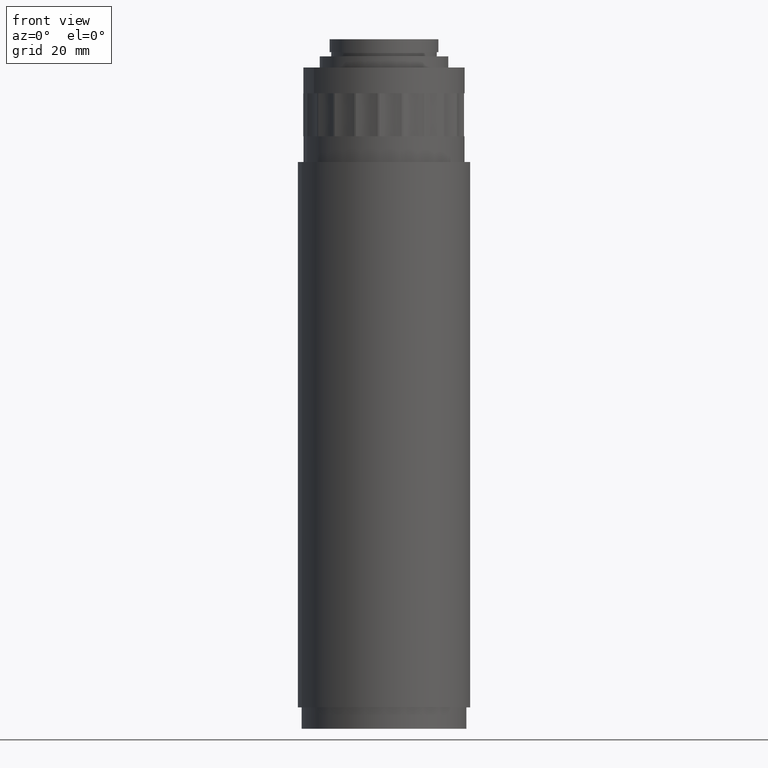
[diagram: clean part render]
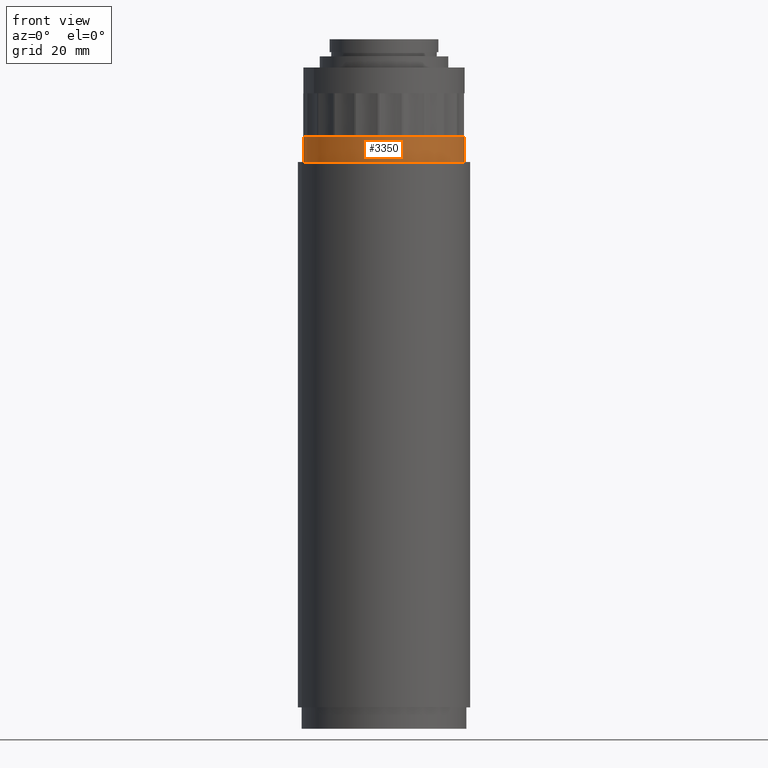
[diagram: same view with one face highlighted and labeled with its STEP entity id]
A machine part, front view. The second image highlights one B-rep face of the part: STEP entity #3350.
In plain terms, the highlighted cylindrical surface (bore or boss wall) has radius 18.8 mm, axis along (0, -0, -1).
Its self-contained STEP definition (entity closure, byte-faithful):
#158 = EDGE_CURVE ( 'NONE', #3812, #3812, #2597, .T. ) ;
#373 = FACE_OUTER_BOUND ( 'NONE', #5061, .T. ) ;
#570 = AXIS2_PLACEMENT_3D ( 'NONE', #4874, #5004, #1530 ) ;
#659 = DIRECTION ( 'NONE',  ( -4.046155243032693411E-18, 1.257599212541799935E-17, 1.000000000000000000 ) ) ;
#1460 = ORIENTED_EDGE ( 'NONE', *, *, #158, .T. ) ;
#1530 = DIRECTION ( 'NONE',  ( -0.9519431365357644559, -0.3062748190799417514, 0.000000000000000000 ) ) ;
#1576 = CIRCLE ( 'NONE', #1812, 18.80000000000000071 ) ;
#1812 = AXIS2_PLACEMENT_3D ( 'NONE', #3193, #4027, #4748 ) ;
#2258 = VERTEX_POINT ( 'NONE', #3377 ) ;
#2391 = EDGE_CURVE ( 'NONE', #2258, #2258, #1576, .T. ) ;
#2518 = FACE_OUTER_BOUND ( 'NONE', #3065, .T. ) ;
#2597 = CIRCLE ( 'NONE', #3330, 18.80000000000000071 ) ;
#2628 = DIRECTION ( 'NONE',  ( -0.9519431365357644559, -0.3062748190799417514, 0.000000000000000000 ) ) ;
#2681 = CARTESIAN_POINT ( 'NONE',  ( -17.88470066473946929, -5.771215731367113300, 322.5586631449635320 ) ) ;
#2912 = ORIENTED_EDGE ( 'NONE', *, *, #2391, .T. ) ;
#3065 = EDGE_LOOP ( 'NONE', ( #2912 ) ) ;
#3193 = CARTESIAN_POINT ( 'NONE',  ( 0.01183030213290257177, -0.01324913266420866577, 328.5586631449635320 ) ) ;
#3330 = AXIS2_PLACEMENT_3D ( 'NONE', #4170, #659, #2628 ) ;
#3350 = ADVANCED_FACE ( 'NONE', ( #373, #2518 ), #5029, .T. ) ;
#3377 = CARTESIAN_POINT ( 'NONE',  ( -17.88470066473946929, -5.771215731367113300, 328.5586631449635320 ) ) ;
#3812 = VERTEX_POINT ( 'NONE', #2681 ) ;
#4027 = DIRECTION ( 'NONE',  ( 4.046155243032693411E-18, -1.257599212541799935E-17, -1.000000000000000000 ) ) ;
#4170 = CARTESIAN_POINT ( 'NONE',  ( 0.01183030213290259605, -0.01324913266420874036, 322.5586631449635320 ) ) ;
#4748 = DIRECTION ( 'NONE',  ( -0.9519431365357644559, -0.3062748190799417514, 0.000000000000000000 ) ) ;
#4874 = CARTESIAN_POINT ( 'NONE',  ( 0.01183030213290322923, -0.01324913266421071101, 165.9109228090400165 ) ) ;
#5004 = DIRECTION ( 'NONE',  ( 4.046155243032693411E-18, -1.257599212541799935E-17, -1.000000000000000000 ) ) ;
#5029 = CYLINDRICAL_SURFACE ( 'NONE', #570, 18.80000000000000071 ) ;
#5061 = EDGE_LOOP ( 'NONE', ( #1460 ) ) ;